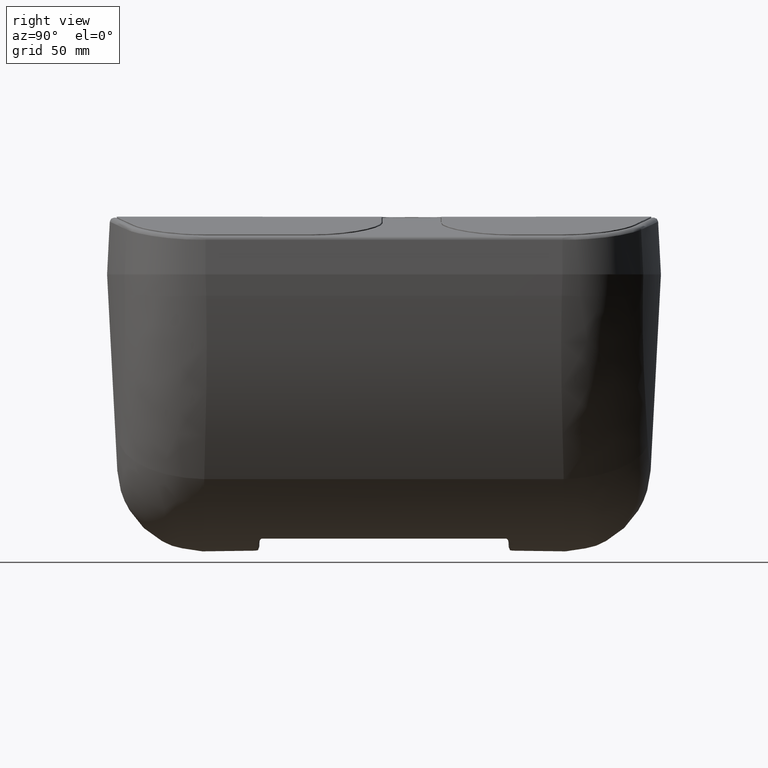
[diagram: clean part render]
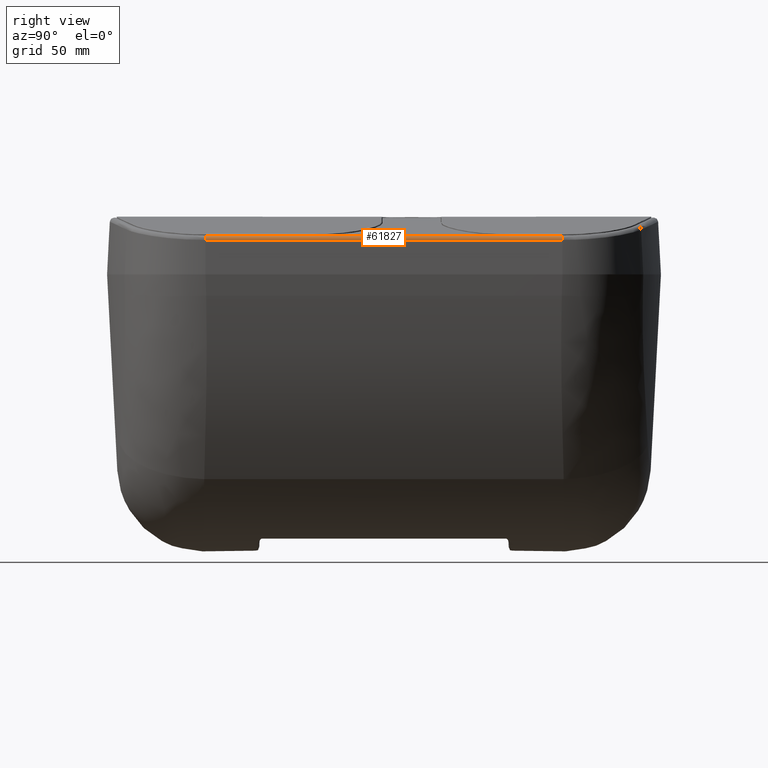
[diagram: same view with one face highlighted and labeled with its STEP entity id]
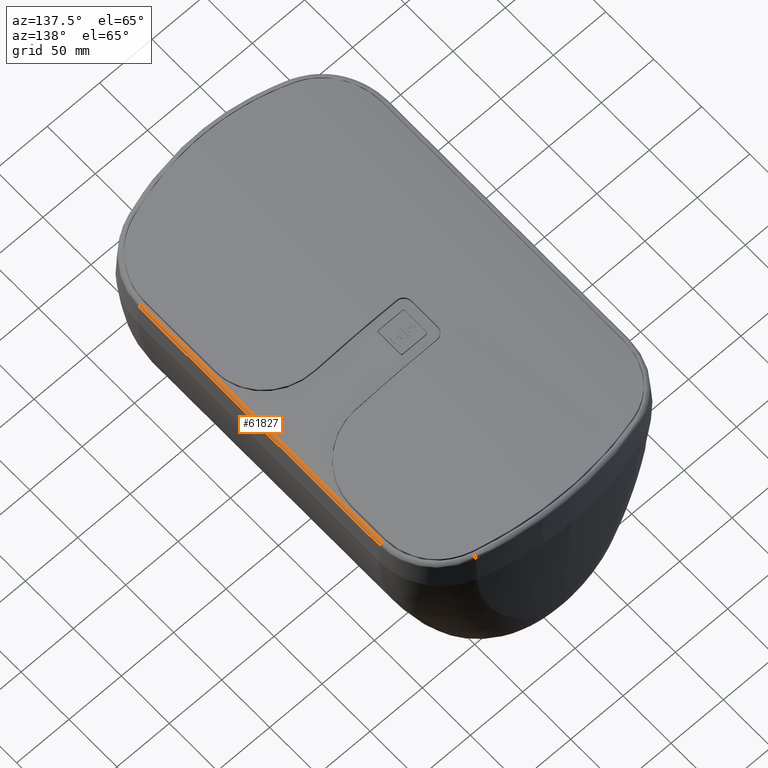
[diagram: same view with one face highlighted and labeled with its STEP entity id]
A machine part, right view. The second image highlights one B-rep face of the part: STEP entity #61827.
A second angle (auxiliary view) of the same face is appended — the face is thin or edge-on in the first view.
In plain terms, the highlighted cylindrical surface (edge-blend (fillet) strip) has radius 3 mm, axis along (-0, -1, -0).
Its self-contained STEP definition (entity closure, byte-faithful):
#381 = CARTESIAN_POINT ( 'NONE',  ( 118.7291013526238572, -74.70878740930947970, 301.2501908068309149 ) ) ;
#1159 = CARTESIAN_POINT ( 'NONE',  ( 118.7291013526238714, 233.4965163680753903, 301.2501908068310854 ) ) ;
#2304 = DIRECTION ( 'NONE',  ( -2.465190328815662439E-32, -1.000000000000000000, -4.287526199837192785E-16 ) ) ;
#17304 = VECTOR ( 'NONE', #34787, 1000.000000000000000 ) ;
#17313 = CARTESIAN_POINT ( 'NONE',  ( 115.7332127483600033, 685.9102307783733750, 301.0931829381024158 ) ) ;
#17423 = CARTESIAN_POINT ( 'NONE',  ( 115.7332127483600033, 176.5292489660925241, 301.0931829381022453 ) ) ;
#19664 = LINE ( 'NONE', #35098, #17304 ) ;
#21335 = CARTESIAN_POINT ( 'NONE',  ( 118.7291013526238572, 176.5292489660924673, 301.2501908068310286 ) ) ;
#22051 = EDGE_CURVE ( 'NONE', #43963, #46709, #19664, .T. ) ;
#22160 = DIRECTION ( 'NONE',  ( -1.000000000000000000, 0.0000000000000000000, 0.0000000000000000000 ) ) ;
#23032 = VERTEX_POINT ( 'NONE', #21335 ) ;
#25694 = CYLINDRICAL_SURFACE ( 'NONE', #59136, 3.000000000000002665 ) ;
#27307 = CARTESIAN_POINT ( 'NONE',  ( 116.3941257653240626, 176.5292489661029549, 304.0194764954894708 ) ) ;
#31333 = EDGE_LOOP ( 'NONE', ( #38745, #61325, #59172, #37181 ) ) ;
#33083 = CARTESIAN_POINT ( 'NONE',  ( 116.3941257653240626, -74.70878740923137684, 304.0194764954893571 ) ) ;
#33377 = DIRECTION ( 'NONE',  ( 2.465190328815662439E-32, 1.000000000000000000, 4.287526199837192785E-16 ) ) ;
#34787 = DIRECTION ( 'NONE',  ( -2.465190328815662439E-32, -1.000000000000000000, -4.287526199837192785E-16 ) ) ;
#35098 = CARTESIAN_POINT ( 'NONE',  ( 116.3941257653240484, 685.9102307783733750, 304.0194764954899256 ) ) ;
#36659 = DIRECTION ( 'NONE',  ( -2.465190328815662439E-32, -1.000000000000000000, -4.287526199837192785E-16 ) ) ;
#37181 = ORIENTED_EDGE ( 'NONE', *, *, #22051, .T. ) ;
#38745 = ORIENTED_EDGE ( 'NONE', *, *, #39920, .T. ) ;
#39920 = EDGE_CURVE ( 'NONE', #46709, #51629, #50159, .T. ) ;
#41113 = LINE ( 'NONE', #1159, #61059 ) ;
#42420 = CARTESIAN_POINT ( 'NONE',  ( 115.7332127483600033, -74.70878740922404404, 301.0931829381021885 ) ) ;
#43963 = VERTEX_POINT ( 'NONE', #27307 ) ;
#46709 = VERTEX_POINT ( 'NONE', #33083 ) ;
#47728 = AXIS2_PLACEMENT_3D ( 'NONE', #17423, #2304, #56468 ) ;
#48208 = DIRECTION ( 'NONE',  ( -1.000000000000000000, 0.0000000000000000000, 0.0000000000000000000 ) ) ;
#50159 = CIRCLE ( 'NONE', #63582, 3.000000000000002665 ) ;
#50549 = FACE_OUTER_BOUND ( 'NONE', #31333, .T. ) ;
#51629 = VERTEX_POINT ( 'NONE', #381 ) ;
#56468 = DIRECTION ( 'NONE',  ( -1.000000000000000000, 0.0000000000000000000, 0.0000000000000000000 ) ) ;
#58958 = EDGE_CURVE ( 'NONE', #23032, #51629, #41113, .T. ) ;
#59136 = AXIS2_PLACEMENT_3D ( 'NONE', #17313, #36659, #22160 ) ;
#59172 = ORIENTED_EDGE ( 'NONE', *, *, #60051, .T. ) ;
#60051 = EDGE_CURVE ( 'NONE', #23032, #43963, #61135, .T. ) ;
#61059 = VECTOR ( 'NONE', #61131, 1000.000000000000000 ) ;
#61131 = DIRECTION ( 'NONE',  ( -2.465190328815662439E-32, -1.000000000000000000, -4.287526199837192785E-16 ) ) ;
#61135 = CIRCLE ( 'NONE', #47728, 3.000000000000002665 ) ;
#61325 = ORIENTED_EDGE ( 'NONE', *, *, #58958, .F. ) ;
#61827 = ADVANCED_FACE ( 'NONE', ( #50549 ), #25694, .T. ) ;
#63582 = AXIS2_PLACEMENT_3D ( 'NONE', #42420, #33377, #48208 ) ;